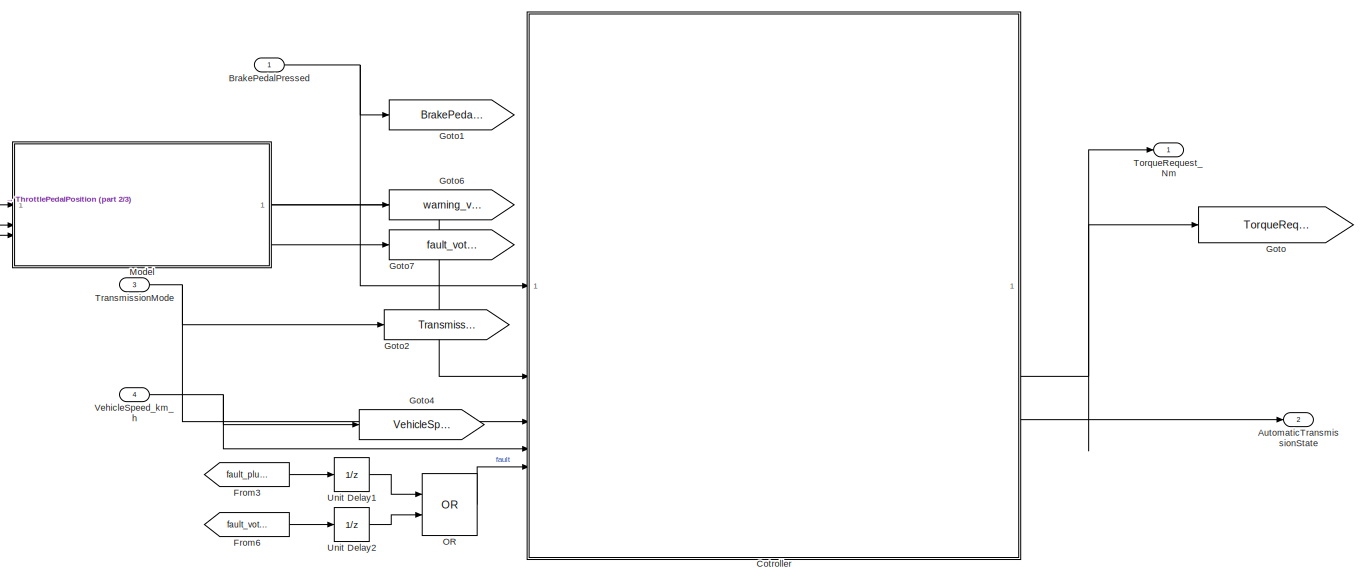
[diagram: root canvas - part 1/3, full width, top band]
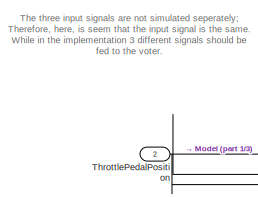
[diagram: root canvas - part 2/3, top left region]
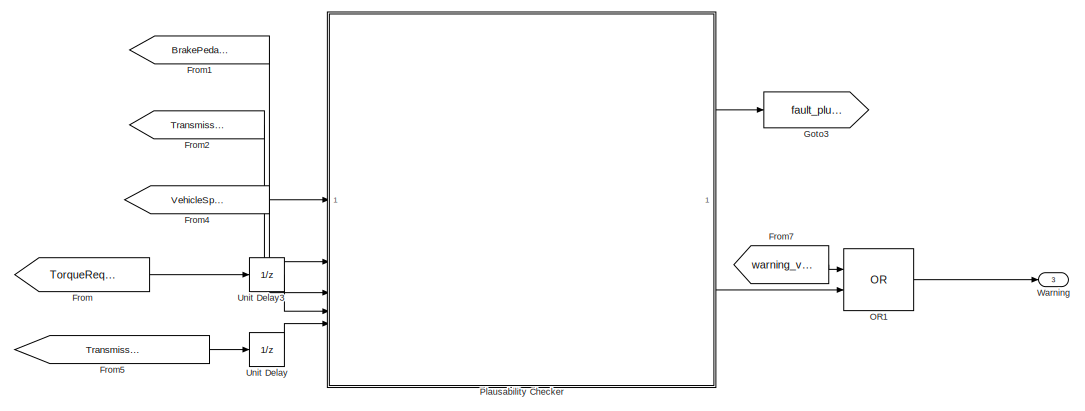
[diagram: root canvas - part 3/3, bottom right region]
MODEL slx_c17cd709bf51
KIND model
CONFIG AbsTol = auto
CONFIG EnableMultiTasking = off
CONFIG FixedStep = 1/100
CONFIG MaxStep = auto
CONFIG MinStep = auto
CONFIG RelTol = 1e-3
CONFIG SampleTimeConstraint = Unconstrained
CONFIG SolverName = FixedStepAuto
CONFIG StartTime = 0.0
CONFIG StopTime = 100
BLOCK [Outport] AutomaticTransmissionState
  OutDataTypeStr = Enum: TransmissionState
  Port = 2
BLOCK [Inport] BrakePedalPressed
  OutDataTypeStr = boolean
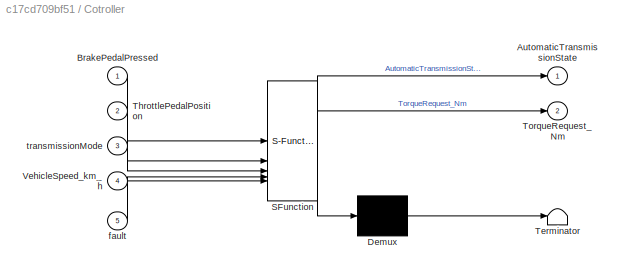
BLOCK [SubSystem] Cotroller
  ErrorFcn = Stateflow.Translate.translate
  PermitHierarchicalResolution = ExplicitOnly
  PortSchema = {"entries":[{"content":{"sides":[{"content":{"connectorIds":["In1","In2","In3","In4","In5"]},"type":"ConnectorPlacement.EquallySpacedRectSide","uuid":"fa3865f3-071a-4523-b56b-dfcb7b7ff1e1"},{"content":{"connectorIds":["Out2","Out1"],"side":"RIGHT"},"type":"ConnectorPlacement.EquallySpacedRectSide","uuid":"97edfdd5-6ca1-4319-83ef-4a85a5b2efa4"},{"content":{"side":"TOP"},"type":"ConnectorPlacement.E...<+253ch>
  SFBlockType = Chart
  TreatAsAtomicUnit = on
BLOCK [Demux] Cotroller/ Demux 
  Outputs = 1
BLOCK [S-Function] Cotroller/ SFunction 
  EnableBusSupport = on
  FunctionName = sf_sfun
  Parameters = MAX_RDB_ENGAGE_SPEED,MAX_TORQUE,MAX_TORQUE_REVERSE
  PortCounts = [5 3]
  SFcnIsStateOwnerBlock = off
  SFunctionDeploymentMode = off
  Tag = Stateflow S-Function 3
BLOCK [Terminator] Cotroller/ Terminator 
BLOCK [Outport] Cotroller/AutomaticTransmissionState
BLOCK [Inport] Cotroller/BrakePedalPressed
BLOCK [Inport] Cotroller/ThrottlePedalPosition
  Port = 2
BLOCK [Outport] Cotroller/TorqueRequest_Nm
  Port = 2
BLOCK [Inport] Cotroller/VehicleSpeed_km_h
  Port = 4
BLOCK [Inport] Cotroller/fault
  Port = 5
BLOCK [Inport] Cotroller/transmissionMode
  Port = 3
BLOCK [From] From
  GotoTag = TorqueRequest
BLOCK [From] From1
  GotoTag = BrakePedalPressed
BLOCK [From] From2
  GotoTag = TransmissionMode
BLOCK [From] From3
  GotoTag = fault_plusibility
BLOCK [From] From4
  GotoTag = VehicleSpeed_km_h
BLOCK [From] From5
  GotoTag = TransmissionMode
BLOCK [From] From6
  GotoTag = fault_voter
BLOCK [From] From7
  GotoTag = warning_voter
BLOCK [Goto] Goto
  GotoTag = TorqueRequest
BLOCK [Goto] Goto1
  GotoTag = BrakePedalPressed
BLOCK [Goto] Goto2
  GotoTag = TransmissionMode
BLOCK [Goto] Goto3
  GotoTag = fault_plusibility
BLOCK [Goto] Goto4
  GotoTag = VehicleSpeed_km_h
BLOCK [Goto] Goto6
  GotoTag = warning_voter
BLOCK [Goto] Goto7
  GotoTag = fault_voter
BLOCK [ModelReference] Model
  ModelNameDialog = voter.slx
  ModelReferenceVersion = 1.25
BLOCK [Logic] OR
  AllPortsSameDT = off
  IconShape = distinctive
  Operator = OR
  OutDataTypeStr = boolean
BLOCK [Logic] OR1
  AllPortsSameDT = off
  IconShape = distinctive
  Operator = OR
  OutDataTypeStr = boolean
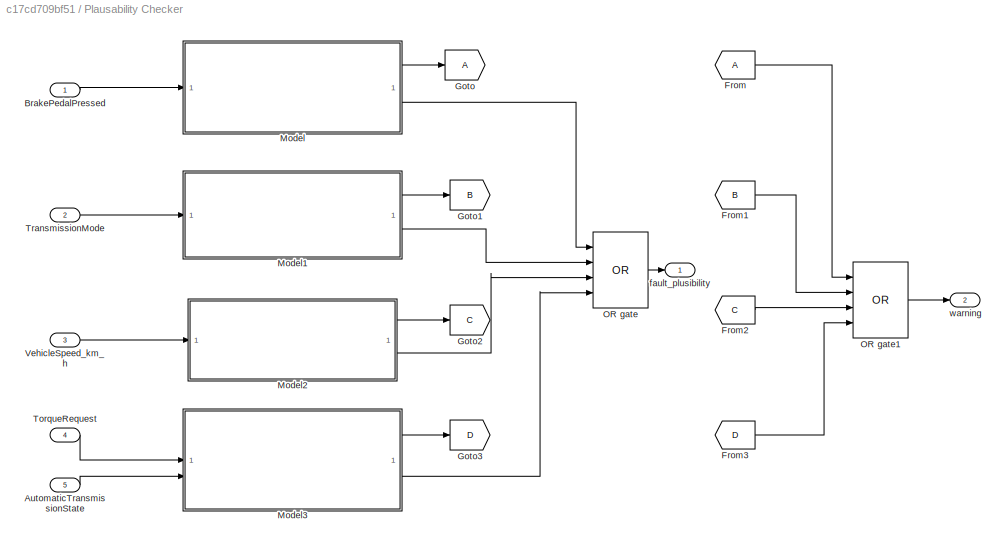
BLOCK [SubSystem] Plausability Checker
BLOCK [Inport] Plausability Checker/AutomaticTransmissionState
  OutDataTypeStr = Enum: TransmissionState
  Port = 5
BLOCK [Inport] Plausability Checker/BrakePedalPressed
BLOCK [From] Plausability Checker/From
BLOCK [From] Plausability Checker/From1
  GotoTag = B
BLOCK [From] Plausability Checker/From2
  GotoTag = C
BLOCK [From] Plausability Checker/From3
  GotoTag = D
BLOCK [Goto] Plausability Checker/Goto
BLOCK [Goto] Plausability Checker/Goto1
  GotoTag = B
BLOCK [Goto] Plausability Checker/Goto2
  GotoTag = C
BLOCK [Goto] Plausability Checker/Goto3
  GotoTag = D
BLOCK [ModelReference] Plausability Checker/Model
  ModelNameDialog = BrakePedalPressed_plausibility.slx
  ModelReferenceVersion = 1.18
BLOCK [ModelReference] Plausability Checker/Model1
  ModelNameDialog = TransmissionMode_plausibility.slx
  ModelReferenceVersion = 1.12
BLOCK [ModelReference] Plausability Checker/Model2
  ModelNameDialog = velocity_plausibility.slx
  ModelReferenceVersion = 1.13
BLOCK [ModelReference] Plausability Checker/Model3
  ModelNameDialog = torqueRequest_plausibility.slx
  ModelReferenceVersion = 1.19
BLOCK [Logic] Plausability Checker/OR gate
  AllPortsSameDT = off
  IconShape = distinctive
  Inputs = 4
  Operator = OR
  OutDataTypeStr = boolean
BLOCK [Logic] Plausability Checker/OR gate1
  AllPortsSameDT = off
  IconShape = distinctive
  Inputs = 4
  Operator = OR
  OutDataTypeStr = boolean
BLOCK [Inport] Plausability Checker/TorqueRequest
  OutDataTypeStr = single
  Port = 4
BLOCK [Inport] Plausability Checker/TransmissionMode
  OutDataTypeStr = Enum: TransmissionState
  Port = 2
BLOCK [Inport] Plausability Checker/VehicleSpeed_km_h
  Port = 3
BLOCK [Outport] Plausability Checker/fault_plusibility
  OutDataTypeStr = boolean
BLOCK [Outport] Plausability Checker/warning
  Port = 2
BLOCK [Inport] ThrottlePedalPosition
  OutDataTypeStr = single
  Port = 2
BLOCK [Outport] TorqueRequest_Nm
  OutDataTypeStr = single
  Unit = N*m
BLOCK [Inport] TransmissionMode
  OutDataTypeStr = Enum: TransmissionState
  Port = 3
BLOCK [UnitDelay] Unit Delay
  HasFrameUpgradeWarning = on
  InitialCondition = TransmissionState.Park
  SampleTime = -1
BLOCK [UnitDelay] Unit Delay1
  HasFrameUpgradeWarning = on
  SampleTime = -1
BLOCK [UnitDelay] Unit Delay2
  HasFrameUpgradeWarning = on
  SampleTime = -1
BLOCK [UnitDelay] Unit Delay3
  HasFrameUpgradeWarning = on
  SampleTime = -1
BLOCK [Inport] VehicleSpeed_km_h
  OutDataTypeStr = single
  Port = 4
  Unit = km/h
BLOCK [Outport] Warning
  OutDataTypeStr = boolean
  Port = 3
ANNOTATION (root): The three input signals are not simulated seperately; Therefore, here, is seem that the input signal is the same. While in the implementation 3 different signals should be fed to the voter.
NET BrakePedalPressed:1 -> Cotroller:1, Goto1:1
LINE Cotroller:1 -> AutomaticTransmissionState:1
NET Cotroller:2 -> Goto:1, TorqueRequest_Nm:1
LINE From1:1 -> Plausability Checker:1
LINE From2:1 -> Plausability Checker:2
LINE From3:1 -> Unit Delay1:1
LINE From4:1 -> Plausability Checker:3
LINE From5:1 -> Unit Delay:1
LINE From6:1 -> Unit Delay2:1
LINE From7:1 -> OR1:1
LINE From:1 -> Unit Delay3:1
LINE Model:1 -> Cotroller:2
LINE Model:2 -> Goto6:1
LINE Model:3 -> Goto7:1
LINE OR1:1 -> Warning:1
LINE OR:1 -> Cotroller:5
LINE Plausability Checker/AutomaticTransmissionState:1 -> Plausability Checker/Model3:2
LINE Plausability Checker/BrakePedalPressed:1 -> Plausability Checker/Model:1
LINE Plausability Checker/From1:1 -> Plausability Checker/OR gate1:2
LINE Plausability Checker/From2:1 -> Plausability Checker/OR gate1:3
LINE Plausability Checker/From3:1 -> Plausability Checker/OR gate1:4
LINE Plausability Checker/From:1 -> Plausability Checker/OR gate1:1
LINE Plausability Checker/Model1:1 -> Plausability Checker/Goto1:1
LINE Plausability Checker/Model1:2 -> Plausability Checker/OR gate:2
LINE Plausability Checker/Model2:1 -> Plausability Checker/Goto2:1
LINE Plausability Checker/Model2:2 -> Plausability Checker/OR gate:3
LINE Plausability Checker/Model3:1 -> Plausability Checker/Goto3:1
LINE Plausability Checker/Model3:2 -> Plausability Checker/OR gate:4
LINE Plausability Checker/Model:1 -> Plausability Checker/Goto:1
LINE Plausability Checker/Model:2 -> Plausability Checker/OR gate:1
LINE Plausability Checker/OR gate1:1 -> Plausability Checker/warning:1
LINE Plausability Checker/OR gate:1 -> Plausability Checker/fault_plusibility:1
LINE Plausability Checker/TorqueRequest:1 -> Plausability Checker/Model3:1
LINE Plausability Checker/TransmissionMode:1 -> Plausability Checker/Model1:1
LINE Plausability Checker/VehicleSpeed_km_h:1 -> Plausability Checker/Model2:1
LINE Plausability Checker:1 -> Goto3:1
LINE Plausability Checker:2 -> OR1:2
NET ThrottlePedalPosition:1 -> Model:1, Model:2, Model:3
NET TransmissionMode:1 -> Cotroller:3, Goto2:1
LINE Unit Delay1:1 -> OR:1
LINE Unit Delay2:1 -> OR:2
LINE Unit Delay3:1 -> Plausability Checker:4
LINE Unit Delay:1 -> Plausability Checker:5
NET VehicleSpeed_km_h:1 -> Cotroller:4, Goto4:1
note: NET lines group one-source signal fan-out (src -> all destinations, sorted); 1:1 wires keep LINE
CHART Cotroller states=13 transitions=26
  STATE_LABEL 'Park\nen:\nAutomaticTransmissionState = TransmissionState.Park;\ndu:\nTorqueRequest_Nm = single(0);\n'
  STATE_LABEL 'Neutral\nen:\nAutomaticTransmissionState = TransmissionState.Neutral;\ndu:\nTorqueRequest_Nm = single(0);'
  STATE_LABEL 'Drive\nen:\nAutomaticTransmissionState = TransmissionState.Drive;\n'
  STATE_LABEL 'ZeroTorque1\ndu:\nTorqueRequest_Nm = single(0);\n'
  STATE_LABEL 'Acceleration\ndu:\nTorqueRequest_Nm = single(MAX_TORQUE*(ThrottlePedalPosition));'
  STATE_LABEL 'StartToMove\ndu:\nTorqueRequest_Nm = single(5);\n'
  STATE_LABEL '[BrakePedalPressed ~= 1 && VehicleSpeed_km_h  < 5 ]'
  STATE_LABEL '[BrakePedalPressed == 1]'
  STATE_LABEL '[(BrakePedalPressed ~= 1)]'
  STATE_LABEL '[ (BrakePedalPressed == 1)]'
  STATE_LABEL '[ThrottlePedalPosition > 0 && BrakePedalPressed ~= 1]'
  STATE_LABEL 'ZeroTorque1\ndu:\nTorqueRequest_Nm = single(0);\n'
  STATE_LABEL 'Acceleration\ndu:\nTorqueRequest_Nm = single(MAX_TORQUE*(ThrottlePedalPosition));'
  STATE_LABEL 'StartToMove\ndu:\nTorqueRequest_Nm = single(5);\n'
  STATE_LABEL 'Brake\nen:\nAutomaticTransmissionState = TransmissionState.Brake'
  STATE_LABEL 'AccelerationRegion\ndu:\nTorqueRequest_Nm = single(MAX_TORQUE*(3/2)*(ThrottlePedalPosition - (1/3)));'
  STATE_LABEL 'ZeroTorque\nTorqueRequest_Nm = single(0);\n'
  STATE_LABEL 'DecelerationRegion\ndu:\nTorqueRequest_Nm = single(-MAX_TORQUE*(1 - 3*ThrottlePedalPosition));'
  STATE_LABEL '[ThrottlePedalPosition > (1/3)]'
  STATE_LABEL '[ (ThrottlePedalPosition >(1/3))]'
  STATE_LABEL '[ ThrottlePedalPosition < (1/3) ]'
  STATE_LABEL '[VehicleSpeed_km_h < MAX_RDB_ENGAGE_SPEED]'
  STATE_LABEL 'AccelerationRegion\ndu:\nTorqueRequest_Nm = single(MAX_TORQUE*(3/2)*(ThrottlePedalPosition - (1/3)));'
  STATE_LABEL 'ZeroTorque\nTorqueRequest_Nm = single(0);\n'
  STATE_LABEL 'DecelerationRegion\ndu:\nTorqueRequest_Nm = single(-MAX_TORQUE*(1 - 3*ThrottlePedalPosition));'
  STATE_LABEL 'Reverse\nen:\nAutomaticTransmissionState = TransmissionState.Reverse;\n'
  STATE_LABEL 'Deceleration\ndu:\nTorqueRequest_Nm = single(-MAX_TORQUE_REVERSE*(ThrottlePedalPosition));'
  STATE_LABEL 'ZeroTorque\nTorqueRequest_Nm = single(0);\n'
  STATE_LABEL '[(BrakePedalPressed == 0)]'
  STATE_LABEL '[(BrakePedalPressed == 1)]'
  STATE_LABEL 'Deceleration\ndu:\nTorqueRequest_Nm = single(-MAX_TORQUE_REVERSE*(ThrottlePedalPosition));'
  STATE_LABEL 'ZeroTorque\nTorqueRequest_Nm = single(0);\n'
CHART  states=0 transitions=0
